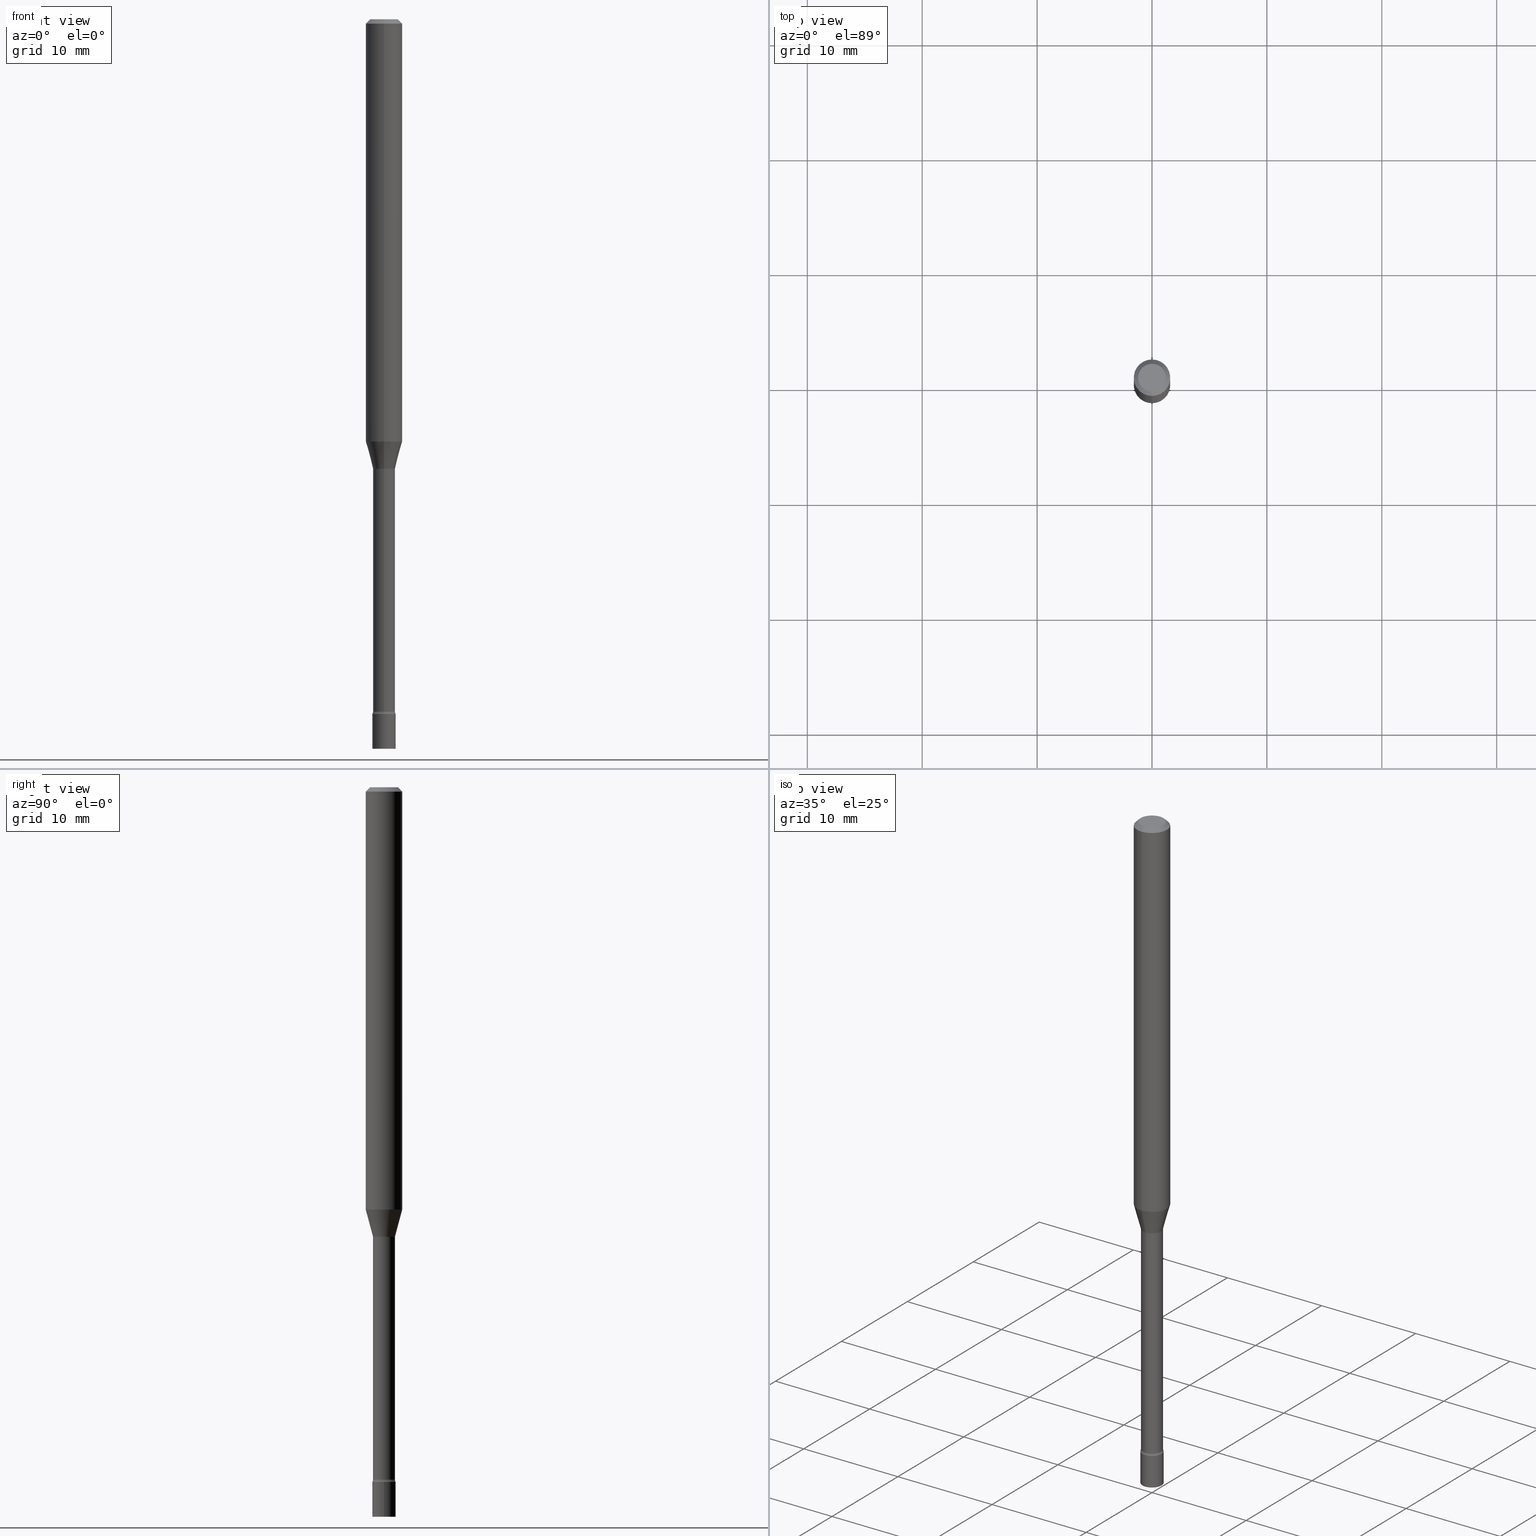
[diagram: canonical four-view strip — front | top / right | iso, engineering-drawing reading convention]
A machine part, canonical four-view strip (front | top / right | iso — engineering-drawing reading convention). The complete STEP part file that produces these views, byte-faithful:
ISO-10303-21;
HEADER;
FILE_DESCRIPTION (( 'STEP AP203' ),
    '1' );
FILE_NAME ('03607.STEP',
    '2024-03-08T22:04:50',
    ( '' ),
    ( '' ),
    'SwSTEP 2.0',
    'SolidWorks 2023',
    '' );
FILE_SCHEMA (( 'CONFIG_CONTROL_DESIGN' ));
ENDSEC;

DATA;
#1 = EDGE_LOOP ( 'NONE', ( #402, #315, #42, #100 ) ) ;
#2 = VERTEX_POINT ( 'NONE', #427 ) ;
#3 = ADVANCED_FACE ( 'NONE', ( #218 ), #393, .T. ) ;
#4 = PRODUCT_RELATED_PRODUCT_CATEGORY ( 'detail', '', ( #240 ) ) ;
#5 = PERSON_AND_ORGANIZATION_ROLE ( 'design_supplier' ) ;
#6 = LINE ( 'NONE', #289, #125 ) ;
#7 = VECTOR ( 'NONE', #462, 39.37007874015748143 ) ;
#8 = AXIS2_PLACEMENT_3D ( 'NONE', #460, #12, #94 ) ;
#9 = PLANE ( 'NONE',  #149 ) ;
#10 = ORIENTED_EDGE ( 'NONE', *, *, #24, .T. ) ;
#11 = PLANE ( 'NONE',  #245 ) ;
#12 = DIRECTION ( 'NONE',  ( -1.000000000000000000, 6.982962677686265922E-15, -4.883557194083112340E-29 ) ) ;
#13 = CARTESIAN_POINT ( 'NONE',  ( 0.04000000000000000083, -8.589044093554136769E-15, -2.379999999999999893 ) ) ;
#14 = CARTESIAN_POINT ( 'NONE',  ( 3.737454790098503724E-16, 0.05259999999999460940, -1.541974787463811225 ) ) ;
#15 = FACE_OUTER_BOUND ( 'NONE', #128, .T. ) ;
#16 = DIRECTION ( 'NONE',  ( 2.445466950502562132E-29, -3.491483996286211040E-15, -1.000000000000000000 ) ) ;
#17 = AXIS2_PLACEMENT_3D ( 'NONE', #342, #250, #50 ) ;
#18 = CARTESIAN_POINT ( 'NONE',  ( 3.668200425753850712E-31, -5.237225994429327531E-17, -0.01500000000000003067 ) ) ;
#19 = CC_DESIGN_APPROVAL ( #159, ( #487 ) ) ;
#20 = CYLINDRICAL_SURFACE ( 'NONE', #476, 0.06250000000000000000 ) ;
#21 = EDGE_CURVE ( 'NONE', #196, #481, #445, .T. ) ;
#22 = CARTESIAN_POINT ( 'NONE',  ( 3.538766591777044932E-29, -5.052428502148717688E-15, -1.447071934891535294 ) ) ;
#23 = CARTESIAN_POINT ( 'NONE',  ( -2.625593966810039482E-16, -0.03760000000000005005, 1.312797982603617000E-16 ) ) ;
#24 = EDGE_CURVE ( 'NONE', #424, #54, #463, .T. ) ;
#25 = LINE ( 'NONE', #346, #274 ) ;
#26 = ORIENTED_EDGE ( 'NONE', *, *, #431, .F. ) ;
#27 = VECTOR ( 'NONE', #331, 39.37007874015748143 ) ;
#28 = LOCAL_TIME ( 17, 4, 50.00000000000000000, #187 ) ;
#29 = VERTEX_POINT ( 'NONE', #74 ) ;
#30 = DIRECTION ( 'NONE',  ( -4.851104656540964275E-15, -0.7071067811865500152, -0.7071067811865450192 ) ) ;
#31 = ORIENTED_EDGE ( 'NONE', *, *, #267, .T. ) ;
#32 = ORIENTED_EDGE ( 'NONE', *, *, #36, .T. ) ;
#33 = CIRCLE ( 'NONE', #197, 0.04000000000000000083 ) ;
#34 = CIRCLE ( 'NONE', #198, 0.03811111260566397291 ) ;
#35 = ORIENTED_EDGE ( 'NONE', *, *, #40, .F. ) ;
#36 = EDGE_CURVE ( 'NONE', #507, #389, #356, .T. ) ;
#37 = DIRECTION ( 'NONE',  ( 1.000000000000000000, -6.982962677686259611E-15, 0.000000000000000000 ) ) ;
#38 = APPROVAL_DATE_TIME ( #151, #229 ) ;
#39 = ORIENTED_EDGE ( 'NONE', *, *, #490, .T. ) ;
#40 = EDGE_CURVE ( 'NONE', #54, #424, #33, .T. ) ;
#41 = APPROVAL_ROLE ( '' ) ;
#42 = ORIENTED_EDGE ( 'NONE', *, *, #514, .T. ) ;
#43 = CARTESIAN_POINT ( 'NONE',  ( -2.793185071073924012E-16, -0.04000000000000831363, -2.379999999999999893 ) ) ;
#44 = AXIS2_PLACEMENT_3D ( 'NONE', #160, #247, #334 ) ;
#45 = CARTESIAN_POINT ( 'NONE',  ( 3.538766591777044932E-29, -5.052428502148717688E-15, -1.447071934891535294 ) ) ;
#46 = DIRECTION ( 'NONE',  ( -6.982962677686265922E-15, -1.000000000000000000, 3.491483996286211435E-15 ) ) ;
#47 = DIRECTION ( 'NONE',  ( -6.982962677686266711E-15, -1.000000000000000000, 3.491483996286211040E-15 ) ) ;
#48 = DIRECTION ( 'NONE',  ( -2.445466950502562132E-29, 3.491483996286211040E-15, 1.000000000000000000 ) ) ;
#49 = ADVANCED_FACE ( 'NONE', ( #489 ), #453, .T. ) ;
#50 = DIRECTION ( 'NONE',  ( -6.982962677686265922E-15, -1.000000000000000000, 3.491483996286211040E-15 ) ) ;
#51 = VERTEX_POINT ( 'NONE', #43 ) ;
#52 = CARTESIAN_POINT ( 'NONE',  ( -4.364351673553912750E-16, -0.06250000000000005551, -0.01499999999999981209 ) ) ;
#53 = AXIS2_PLACEMENT_3D ( 'NONE', #499, #249, #297 ) ;
#54 = VERTEX_POINT ( 'NONE', #132 ) ;
#55 = CARTESIAN_POINT ( 'NONE',  ( -4.364351673553916201E-16, -0.06250000000000000000, 2.182177497678881900E-16 ) ) ;
#56 = ADVANCED_FACE ( 'NONE', ( #97 ), #222, .F. ) ;
#57 = ORIENTED_EDGE ( 'NONE', *, *, #516, .F. ) ;
#58 = ORIENTED_EDGE ( 'NONE', *, *, #143, .T. ) ;
#59 = PERSON_AND_ORGANIZATION_ROLE ( 'creator' ) ;
#60 = EDGE_LOOP ( 'NONE', ( #10, #440 ) ) ;
#61 = EDGE_CURVE ( 'NONE', #112, #507, #385, .T. ) ;
#62 = DIRECTION ( 'NONE',  ( -6.982962677686266711E-15, -1.000000000000000000, 0.000000000000000000 ) ) ;
#63 = DIRECTION ( 'NONE',  ( 1.000000000000000000, -6.982962677686265922E-15, 4.876176775795935793E-29 ) ) ;
#64 = ORIENTED_EDGE ( 'NONE', *, *, #433, .T. ) ;
#65 = DIRECTION ( 'NONE',  ( -2.445468806185136597E-29, 3.491481338843145583E-15, 1.000000000000000000 ) ) ;
#66 = CIRCLE ( 'NONE', #181, 0.03760000000000009862 ) ;
#67 = LOCAL_TIME ( 17, 4, 50.00000000000000000, #383 ) ;
#68 = LENGTH_MEASURE_WITH_UNIT ( LENGTH_MEASURE( 0.02539999999999999897 ), #311 );
#69 = EDGE_LOOP ( 'NONE', ( #124, #58, #239, #304 ) ) ;
#70 = CARTESIAN_POINT ( 'NONE',  ( -2.661284769304125242E-16, -0.03811111260566934361, -1.538092501787273081 ) ) ;
#71 = PERSON_AND_ORGANIZATION_ROLE ( 'design_owner' ) ;
#72 = ORIENTED_EDGE ( 'NONE', *, *, #278, .T. ) ;
#73 = AXIS2_PLACEMENT_3D ( 'NONE', #225, #442, #75 ) ;
#74 = CARTESIAN_POINT ( 'NONE',  ( -2.625593966809462627E-16, -0.03760000000000837672, -2.371861204020250025 ) ) ;
#75 = DIRECTION ( 'NONE',  ( -6.982962677686265922E-15, -1.000000000000000000, 3.483106191921935554E-15 ) ) ;
#76 = VERTEX_POINT ( 'NONE', #478 ) ;
#77 = EDGE_CURVE ( 'NONE', #78, #2, #6, .T. ) ;
#78 = VERTEX_POINT ( 'NONE', #228 ) ;
#79 = CIRCLE ( 'NONE', #436, 0.01500000000000000291 ) ;
#80 = AXIS2_PLACEMENT_3D ( 'NONE', #106, #437, #276 ) ;
#81 = AXIS2_PLACEMENT_3D ( 'NONE', #136, #107, #63 ) ;
#82 = DIRECTION ( 'NONE',  ( -2.445468806185136597E-29, 3.491481338843145583E-15, 1.000000000000000000 ) ) ;
#83 = DATE_AND_TIME ( #191, #28 ) ;
#84 = CC_DESIGN_DATE_AND_TIME_ASSIGNMENT ( #283, #366, ( #359 ) ) ;
#85 = VECTOR ( 'NONE', #285, 39.37007874015748143 ) ;
#86 = FACE_OUTER_BOUND ( 'NONE', #213, .T. ) ;
#87 = LOCAL_TIME ( 17, 4, 50.00000000000000000, #450 ) ;
#88 = CARTESIAN_POINT ( 'NONE',  ( -0.04000000000000000083, -8.234997372473236299E-15, -2.500000000000000000 ) ) ;
#89 = FACE_OUTER_BOUND ( 'NONE', #420, .T. ) ;
#90 = DIRECTION ( 'NONE',  ( 1.000000000000000000, -7.105427357601001070E-15, 4.926315541086373721E-29 ) ) ;
#91 = EDGE_CURVE ( 'NONE', #196, #76, #183, .T. ) ;
#92 = CARTESIAN_POINT ( 'NONE',  ( 2.793185071075088075E-16, 0.03999999999999169498, -2.380000000000000338 ) ) ;
#93 = DIRECTION ( 'NONE',  ( 7.105427357601001859E-15, 1.000000000000000000, 0.000000000000000000 ) ) ;
#94 = DIRECTION ( 'NONE',  ( -6.982962677686266711E-15, -1.000000000000000000, 0.000000000000000000 ) ) ;
#95 = AXIS2_PLACEMENT_3D ( 'NONE', #375, #121, #459 ) ;
#96 = CC_DESIGN_PERSON_AND_ORGANIZATION_ASSIGNMENT ( #483, #5, ( #505 ) ) ;
#97 = FACE_OUTER_BOUND ( 'NONE', #391, .T. ) ;
#98 = ORIENTED_EDGE ( 'NONE', *, *, #318, .F. ) ;
#99 = DIRECTION ( 'NONE',  ( -6.982962677686265922E-15, -1.000000000000000000, 4.370956789862821150E-15 ) ) ;
#100 = ORIENTED_EDGE ( 'NONE', *, *, #21, .F. ) ;
#101 = DIRECTION ( 'NONE',  ( -2.445466950502562132E-29, 3.491483996286211040E-15, 1.000000000000000000 ) ) ;
#102 = DIRECTION ( 'NONE',  ( 6.982962677686265922E-15, 1.000000000000000000, -3.483106191921935554E-15 ) ) ;
#103 = AXIS2_PLACEMENT_3D ( 'NONE', #45, #494, #246 ) ;
#104 = DIRECTION ( 'NONE',  ( 1.000000000000000000, 0.000000000000000000, 0.000000000000000000 ) ) ;
#105 = CARTESIAN_POINT ( 'NONE',  ( -4.287811248607203282E-16, -0.06250000000000005551, -0.01499999999999981209 ) ) ;
#106 = CARTESIAN_POINT ( 'NONE',  ( 5.820215758720625190E-29, -8.309725586446686731E-15, -2.379999999999999893 ) ) ;
#107 = DIRECTION ( 'NONE',  ( -2.438088387897960049E-29, 3.491481338843145188E-15, 1.000000000000000000 ) ) ;
#108 = CARTESIAN_POINT ( 'NONE',  ( 0.04000000000000000083, -9.008021854215314980E-15, -2.500000000000000000 ) ) ;
#109 = ORIENTED_EDGE ( 'NONE', *, *, #36, .F. ) ;
#110 = DATE_AND_TIME ( #406, #237 ) ;
#111 = CYLINDRICAL_SURFACE ( 'NONE', #287, 0.04000000000000000083 ) ;
#112 = VERTEX_POINT ( 'NONE', #146 ) ;
#113 = EDGE_LOOP ( 'NONE', ( #147, #470, #443, #209 ) ) ;
#114 = SECURITY_CLASSIFICATION_LEVEL ( 'unclassified' ) ;
#115 = ORIENTED_EDGE ( 'NONE', *, *, #374, .F. ) ;
#116 = CIRCLE ( 'NONE', #364, 0.01500000000000002720 ) ;
#117 = DIRECTION ( 'NONE',  ( 2.438088387897960049E-29, -3.491481338843145188E-15, -1.000000000000000000 ) ) ;
#118 = DIRECTION ( 'NONE',  ( -6.982962677686265922E-15, -1.000000000000000000, 0.000000000000000000 ) ) ;
#119 = DIRECTION ( 'NONE',  ( -2.445468806185136597E-29, 3.491481338843145583E-15, 1.000000000000000000 ) ) ;
#120 = ADVANCED_FACE ( 'NONE', ( #217 ), #139, .T. ) ;
#121 = DIRECTION ( 'NONE',  ( -2.445466950502562132E-29, 3.491483996286211040E-15, 1.000000000000000000 ) ) ;
#122 = FACE_OUTER_BOUND ( 'NONE', #461, .T. ) ;
#123 = ORIENTED_EDGE ( 'NONE', *, *, #133, .T. ) ;
#124 = ORIENTED_EDGE ( 'NONE', *, *, #337, .T. ) ;
#125 = VECTOR ( 'NONE', #241, 39.37007874015748143 ) ;
#126 = DIRECTION ( 'NONE',  ( -2.445468806185136597E-29, 3.491481338843145583E-15, 1.000000000000000000 ) ) ;
#127 = AXIS2_PLACEMENT_3D ( 'NONE', #161, #119, #290 ) ;
#128 = EDGE_LOOP ( 'NONE', ( #347, #269, #350, #109 ) ) ;
#129 = DIRECTION ( 'NONE',  ( -6.982962677686266711E-15, -1.000000000000000000, 3.491483996286211040E-15 ) ) ;
#130 = ORIENTED_EDGE ( 'NONE', *, *, #21, .T. ) ;
#131 = CARTESIAN_POINT ( 'NONE',  ( 3.737454790098713265E-16, 0.05259999999999181997, -2.371861204020250025 ) ) ;
#132 = CARTESIAN_POINT ( 'NONE',  ( -0.04000000000000000083, -8.234997372473236299E-15, -2.379999999999999893 ) ) ;
#133 = EDGE_CURVE ( 'NONE', #78, #296, #79, .T. ) ;
#134 = DIRECTION ( 'NONE',  ( 7.105427357601001859E-15, 1.000000000000000000, 0.000000000000000000 ) ) ;
#135 = EDGE_LOOP ( 'NONE', ( #277, #299, #444, #261 ) ) ;
#136 = CARTESIAN_POINT ( 'NONE',  ( 5.820215758720625190E-29, -8.309725586446686731E-15, -2.379999999999999893 ) ) ;
#137 = ORIENTED_EDGE ( 'NONE', *, *, #156, .T. ) ;
#138 = AXIS2_PLACEMENT_3D ( 'NONE', #303, #468, #129 ) ;
#139 = CYLINDRICAL_SURFACE ( 'NONE', #281, 0.06250000000000000000 ) ;
#140 = AXIS2_PLACEMENT_3D ( 'NONE', #493, #16, #200 ) ;
#141 = DIRECTION ( 'NONE',  ( -6.982962677686267499E-15, -1.000000000000000000, 0.000000000000000000 ) ) ;
#142 = FACE_OUTER_BOUND ( 'NONE', #60, .T. ) ;
#143 = EDGE_CURVE ( 'NONE', #270, #112, #185, .T. ) ;
#144 = CARTESIAN_POINT ( 'NONE',  ( 3.761354379936579298E-29, -5.370225354798085278E-15, -1.538092501787273081 ) ) ;
#145 = APPROVAL_STATUS ( 'not_yet_approved' ) ;
#146 = CARTESIAN_POINT ( 'NONE',  ( 4.440892098500976219E-16, 0.06249999999999491379, -1.447071934891535516 ) ) ;
#147 = ORIENTED_EDGE ( 'NONE', *, *, #77, .F. ) ;
#148 = ADVANCED_FACE ( 'NONE', ( #484 ), #273, .F. ) ;
#149 = AXIS2_PLACEMENT_3D ( 'NONE', #92, #498, #46 ) ;
#150 = CONICAL_SURFACE ( 'NONE', #314, 0.06250000000000000000, 0.7853981633974483900 ) ;
#151 = DATE_AND_TIME ( #488, #87 ) ;
#152 = EDGE_LOOP ( 'NONE', ( #518, #194, #339, #32 ) ) ;
#153 = PERSON_AND_ORGANIZATION ( #284, #302 ) ;
#154 = ADVANCED_FACE ( 'NONE', ( #425 ), #111, .T. ) ;
#155 = PERSON_AND_ORGANIZATION_ROLE ( 'classification_officer' ) ;
#156 = EDGE_CURVE ( 'NONE', #296, #51, #172, .T. ) ;
#157 = CIRCLE ( 'NONE', #519, 0.03760000000000009862 ) ;
#158 = DIRECTION ( 'NONE',  ( 6.982962677686265922E-15, 1.000000000000000000, -3.491483996286211435E-15 ) ) ;
#159 = APPROVAL ( #145, 'UNSPECIFIED' ) ;
#160 = CARTESIAN_POINT ( 'NONE',  ( 3.761354379936579298E-29, -5.370225354798085278E-15, -1.538092501787273081 ) ) ;
#161 = CARTESIAN_POINT ( 'NONE',  ( 6.113672015462842613E-29, -8.728703347107864943E-15, -2.500000000000000000 ) ) ;
#162 = AXIS2_PLACEMENT_3D ( 'NONE', #271, #512, #141 ) ;
#163 = AXIS2_PLACEMENT_3D ( 'NONE', #335, #48, #291 ) ;
#164 = CYLINDRICAL_SURFACE ( 'NONE', #53, 0.03760000000000005005 ) ;
#165 = DIRECTION ( 'NONE',  ( -2.445468806185136877E-29, 3.491481338843145188E-15, 1.000000000000000000 ) ) ;
#166 = LINE ( 'NONE', #55, #27 ) ;
#167 = ORIENTED_EDGE ( 'NONE', *, *, #156, .F. ) ;
#168 = LINE ( 'NONE', #23, #85 ) ;
#169 = EDGE_CURVE ( 'NONE', #399, #389, #441, .T. ) ;
#170 = DIRECTION ( 'NONE',  ( -2.445466950502562132E-29, 3.491483996286211040E-15, 1.000000000000000000 ) ) ;
#171 = CC_DESIGN_PERSON_AND_ORGANIZATION_ASSIGNMENT ( #421, #59, ( #359 ) ) ;
#172 = CIRCLE ( 'NONE', #244, 0.04000000000000000083 ) ;
#173 = AXIS2_PLACEMENT_3D ( 'NONE', #22, #170, #99 ) ;
#174 = EDGE_LOOP ( 'NONE', ( #57, #64, #412, #35 ) ) ;
#175 = CARTESIAN_POINT ( 'NONE',  ( 3.761354379936579298E-29, -5.370225354798085278E-15, -1.538092501787273081 ) ) ;
#176 = ADVANCED_FACE ( 'NONE', ( #432 ), #9, .F. ) ;
#177 = DIRECTION ( 'NONE',  ( 1.000000000000000000, -7.105427357601001070E-15, 4.926315541086373721E-29 ) ) ;
#178 = DIRECTION ( 'NONE',  ( -6.982962677686265922E-15, -1.000000000000000000, 3.491483996286210646E-15 ) ) ;
#179 = APPROVAL_STATUS ( 'not_yet_approved' ) ;
#180 = ORIENTED_EDGE ( 'NONE', *, *, #234, .F. ) ;
#181 = AXIS2_PLACEMENT_3D ( 'NONE', #414, #457, #377 ) ;
#182 = DIRECTION ( 'NONE',  ( 1.839019923739601104E-15, 0.2588190451025250693, 0.9659258262890670910 ) ) ;
#183 = LINE ( 'NONE', #70, #378 ) ;
#184 = CARTESIAN_POINT ( 'NONE',  ( -2.625593966809658857E-16, -0.03760000000000537912, -1.541974787463811003 ) ) ;
#185 = LINE ( 'NONE', #317, #504 ) ;
#186 = CARTESIAN_POINT ( 'NONE',  ( 0.000000000000000000, 0.000000000000000000, 0.000000000000000000 ) ) ;
#187 = COORDINATED_UNIVERSAL_TIME_OFFSET ( 5, 0, .BEHIND. ) ;
#188 = ORIENTED_EDGE ( 'NONE', *, *, #354, .F. ) ;
#189 = ORIENTED_EDGE ( 'NONE', *, *, #169, .T. ) ;
#190 = CONICAL_SURFACE ( 'NONE', #44, 0.03811111260566397291, 0.2617993877991502960 ) ;
#191 = CALENDAR_DATE ( 2024, 8, 3 ) ;
#192 = ORIENTED_EDGE ( 'NONE', *, *, #337, .F. ) ;
#193 = ADVANCED_FACE ( 'NONE', ( #376 ), #265, .T. ) ;
#194 = ORIENTED_EDGE ( 'NONE', *, *, #267, .F. ) ;
#195 = EDGE_CURVE ( 'NONE', #310, #424, #500, .T. ) ;
#196 = VERTEX_POINT ( 'NONE', #340 ) ;
#197 = AXIS2_PLACEMENT_3D ( 'NONE', #230, #400, #37 ) ;
#198 = AXIS2_PLACEMENT_3D ( 'NONE', #175, #101, #471 ) ;
#199 = CARTESIAN_POINT ( 'NONE',  ( 0.000000000000000000, 0.000000000000000000, 0.000000000000000000 ) ) ;
#200 = DIRECTION ( 'NONE',  ( 6.982962677686265922E-15, 1.000000000000000000, -3.483106191921935554E-15 ) ) ;
#201 = CARTESIAN_POINT ( 'NONE',  ( 3.574424759935164647E-16, 0.03811111260565860220, -1.538092501787273081 ) ) ;
#202 = CONICAL_SURFACE ( 'NONE', #288, 0.03811111260566397291, 0.2617993877991502960 ) ;
#203 = CARTESIAN_POINT ( 'NONE',  ( 3.316907271900976096E-16, 0.04749999999999999362, -1.803023821732567280E-16 ) ) ;
#204 = DIRECTION ( 'NONE',  ( -2.445466950502562132E-29, 3.491483996286211040E-15, 1.000000000000000000 ) ) ;
#205 = DIRECTION ( 'NONE',  ( -2.445466950502562132E-29, 3.491483996286211040E-15, 1.000000000000000000 ) ) ;
#206 = DIRECTION ( 'NONE',  ( 2.445466950502561571E-29, -3.491483996286211435E-15, -1.000000000000000000 ) ) ;
#207 = VERTEX_POINT ( 'NONE', #88 ) ;
#208 = DIRECTION ( 'NONE',  ( -6.982962677686265922E-15, -1.000000000000000000, 3.483106191921935554E-15 ) ) ;
#209 = ORIENTED_EDGE ( 'NONE', *, *, #514, .F. ) ;
#210 = EDGE_LOOP ( 'NONE', ( #98, #355 ) ) ;
#211 = ORIENTED_EDGE ( 'NONE', *, *, #24, .F. ) ;
#212 = CARTESIAN_POINT ( 'NONE',  ( 3.770848381250961957E-29, -5.383780293106726764E-15, -1.541974787463811003 ) ) ;
#213 = EDGE_LOOP ( 'NONE', ( #31, #39 ) ) ;
#214 = APPROVAL_PERSON_ORGANIZATION ( #520, #229, #231 ) ;
#215 = CARTESIAN_POINT ( 'NONE',  ( 0.000000000000000000, 0.000000000000000000, 0.000000000000000000 ) ) ;
#216 = EDGE_CURVE ( 'NONE', #112, #76, #357, .T. ) ;
#217 = FACE_OUTER_BOUND ( 'NONE', #135, .T. ) ;
#218 = FACE_OUTER_BOUND ( 'NONE', #113, .T. ) ;
#219 = APPLICATION_PROTOCOL_DEFINITION ( 'international standard', 'config_control_design', 1994, #384 ) ;
#220 = DIRECTION ( 'NONE',  ( -1.807323732225330928E-15, -0.2588190451025182970, 0.9659258262890689783 ) ) ;
#221 = APPLICATION_PROTOCOL_DEFINITION ( 'international standard', 'config_control_design', 1994, #452 ) ;
#222 = TOROIDAL_SURFACE ( 'NONE', #235, 0.05260000000000000092, 0.01500000000000002720 ) ;
#223 = AXIS2_PLACEMENT_3D ( 'NONE', #361, #82, #407 ) ;
#224 = CC_DESIGN_SECURITY_CLASSIFICATION ( #487, ( #505 ) ) ;
#225 = CARTESIAN_POINT ( 'NONE',  ( 3.668200425753850712E-31, -5.237225994429327531E-17, -0.01500000000000003067 ) ) ;
#226 = COORDINATED_UNIVERSAL_TIME_OFFSET ( 5, 0, .BEHIND. ) ;
#227 = MANIFOLD_SOLID_BREP ( 'Body-Move/Copy2[2]', #395 ) ;
#228 = CARTESIAN_POINT ( 'NONE',  ( 2.756905814749772560E-16, 0.03759999999999182052, -2.371861204020250025 ) ) ;
#229 = APPROVAL ( #279, 'UNSPECIFIED' ) ;
#230 = CARTESIAN_POINT ( 'NONE',  ( 5.820215758720625190E-29, -8.309725586446686731E-15, -2.379999999999999893 ) ) ;
#231 = APPROVAL_ROLE ( '' ) ;
#232 = ORIENTED_EDGE ( 'NONE', *, *, #318, .T. ) ;
#233 = ORIENTED_EDGE ( 'NONE', *, *, #77, .T. ) ;
#234 = EDGE_CURVE ( 'NONE', #29, #78, #157, .T. ) ;
#235 = AXIS2_PLACEMENT_3D ( 'NONE', #458, #349, #307 ) ;
#236 = CIRCLE ( 'NONE', #103, 0.06250000000000000000 ) ;
#237 = LOCAL_TIME ( 17, 4, 50.00000000000000000, #226 ) ;
#238 = ADVANCED_FACE ( 'NONE', ( #338 ), #202, .T. ) ;
#239 = ORIENTED_EDGE ( 'NONE', *, *, #401, .F. ) ;
#240 = PRODUCT ( '03607', '03607', '', ( #480 ) ) ;
#241 = DIRECTION ( 'NONE',  ( -2.445466950502561851E-29, 3.491483996286211435E-15, 1.000000000000000000 ) ) ;
#242 = DATE_TIME_ROLE ( 'classification_date' ) ;
#243 = ADVANCED_FACE ( 'NONE', ( #122 ), #372, .T. ) ;
#244 = AXIS2_PLACEMENT_3D ( 'NONE', #509, #479, #275 ) ;
#245 = AXIS2_PLACEMENT_3D ( 'NONE', #203, #206, #158 ) ;
#246 = DIRECTION ( 'NONE',  ( -6.982962677686265922E-15, -1.000000000000000000, 4.370956789862821150E-15 ) ) ;
#247 = DIRECTION ( 'NONE',  ( -2.445466950502562132E-29, 3.491483996286211040E-15, 1.000000000000000000 ) ) ;
#248 = CC_DESIGN_PERSON_AND_ORGANIZATION_ASSIGNMENT ( #368, #327, ( #505 ) ) ;
#249 = DIRECTION ( 'NONE',  ( -2.445466950502562132E-29, 3.491483996286211040E-15, 1.000000000000000000 ) ) ;
#250 = DIRECTION ( 'NONE',  ( -2.445466950502562132E-29, 3.491483996286211040E-15, 1.000000000000000000 ) ) ;
#251 = EDGE_CURVE ( 'NONE', #29, #51, #330, .T. ) ;
#252 = CARTESIAN_POINT ( 'NONE',  ( 5.800308185610736390E-29, -8.281315435248845648E-15, -2.371861204020250025 ) ) ;
#253 = CIRCLE ( 'NONE', #127, 0.04000000000000000083 ) ;
#254 = CARTESIAN_POINT ( 'NONE',  ( 4.364351673553919652E-16, 0.06249999999999995143, -0.01500000000000024751 ) ) ;
#255 = CARTESIAN_POINT ( 'NONE',  ( 7.070770489614202701E-46, -1.009520165497527576E-31, -2.891378469932339857E-17 ) ) ;
#256 = ORIENTED_EDGE ( 'NONE', *, *, #143, .F. ) ;
#257 = EDGE_LOOP ( 'NONE', ( #472, #167 ) ) ;
#258 = ADVANCED_FACE ( 'NONE', ( #286 ), #190, .T. ) ;
#259 = ORIENTED_EDGE ( 'NONE', *, *, #91, .T. ) ;
#260 = CC_DESIGN_DATE_AND_TIME_ASSIGNMENT ( #83, #242, ( #487 ) ) ;
#261 = ORIENTED_EDGE ( 'NONE', *, *, #367, .F. ) ;
#262 = CARTESIAN_POINT ( 'NONE',  ( 4.440892098500982135E-16, 0.06249999999999995143, -0.01500000000000024751 ) ) ;
#263 = DIRECTION ( 'NONE',  ( -2.445466950502562132E-29, 3.491483996286211040E-15, 1.000000000000000000 ) ) ;
#264 = DIRECTION ( 'NONE',  ( -2.445466950502562132E-29, 3.491483996286211040E-15, 1.000000000000000000 ) ) ;
#265 = CONICAL_SURFACE ( 'NONE', #140, 0.06250000000000000000, 0.7853981633974483900 ) ;
#266 = CARTESIAN_POINT ( 'NONE',  ( 3.840629472727447874E-16, 0.04749999999999999362, -1.947592745229183872E-16 ) ) ;
#267 = EDGE_CURVE ( 'NONE', #510, #399, #447, .T. ) ;
#268 = CARTESIAN_POINT ( 'NONE',  ( 3.668200425753850712E-31, -5.237225994429327531E-17, -0.01500000000000003067 ) ) ;
#269 = ORIENTED_EDGE ( 'NONE', *, *, #216, .T. ) ;
#270 = VERTEX_POINT ( 'NONE', #201 ) ;
#271 = CARTESIAN_POINT ( 'NONE',  ( -3.673038368462598469E-16, -0.05260000000000538550, -1.541974787463810781 ) ) ;
#272 = SHAPE_DEFINITION_REPRESENTATION ( #473, #506 ) ;
#273 = TOROIDAL_SURFACE ( 'NONE', #343, 0.05260000000000009807, 0.01500000000000000291 ) ;
#274 = VECTOR ( 'NONE', #319, 39.37007874015748143 ) ;
#275 = DIRECTION ( 'NONE',  ( -6.982962677686265922E-15, -1.000000000000000000, 6.829619984160658243E-15 ) ) ;
#276 = DIRECTION ( 'NONE',  ( 1.000000000000000000, -6.982962677686259611E-15, 0.000000000000000000 ) ) ;
#277 = ORIENTED_EDGE ( 'NONE', *, *, #401, .T. ) ;
#278 = EDGE_CURVE ( 'NONE', #481, #2, #336, .T. ) ;
#279 = APPROVAL_STATUS ( 'not_yet_approved' ) ;
#280 = ORIENTED_EDGE ( 'NONE', *, *, #492, .T. ) ;
#281 = AXIS2_PLACEMENT_3D ( 'NONE', #392, #322, #348 ) ;
#282 = CIRCLE ( 'NONE', #396, 0.03811111260566397291 ) ;
#283 = DATE_AND_TIME ( #320, #67 ) ;
#284 = PERSON ( 'UNSPECIFIED', 'UNSPECIFIED', 'UNSPECIFIED', ('UNSPECIFIED'), ('UNSPECIFIED'), ('UNSPECIFIED') ) ;
#285 = DIRECTION ( 'NONE',  ( -2.445466950502561851E-29, 3.491483996286211435E-15, 1.000000000000000000 ) ) ;
#286 = FACE_OUTER_BOUND ( 'NONE', #69, .T. ) ;
#287 = AXIS2_PLACEMENT_3D ( 'NONE', #215, #65, #390 ) ;
#288 = AXIS2_PLACEMENT_3D ( 'NONE', #454, #332, #417 ) ;
#289 = CARTESIAN_POINT ( 'NONE',  ( 2.671640686457979762E-16, 0.03760000000000005005, -1.312797982603617000E-16 ) ) ;
#290 = DIRECTION ( 'NONE',  ( 1.000000000000000000, -6.982962677686259611E-15, 0.000000000000000000 ) ) ;
#291 = DIRECTION ( 'NONE',  ( -6.982962677686265922E-15, -1.000000000000000000, 3.491483996286211040E-15 ) ) ;
#292 = LINE ( 'NONE', #254, #491 ) ;
#293 = DIRECTION ( 'NONE',  ( 1.000000000000000000, -6.982962677686265922E-15, 4.876176775795935793E-29 ) ) ;
#294 = FACE_OUTER_BOUND ( 'NONE', #1, .T. ) ;
#295 = EDGE_CURVE ( 'NONE', #51, #296, #465, .T. ) ;
#296 = VERTEX_POINT ( 'NONE', #313 ) ;
#297 = DIRECTION ( 'NONE',  ( -6.982962677686265922E-15, -1.000000000000000000, 3.491483996286210646E-15 ) ) ;
#298 = DIRECTION ( 'NONE',  ( -2.445466950502562132E-29, 3.491483996286211040E-15, 1.000000000000000000 ) ) ;
#299 = ORIENTED_EDGE ( 'NONE', *, *, #61, .T. ) ;
#300 = AXIS2_PLACEMENT_3D ( 'NONE', #186, #323, #178 ) ;
#301 = TOROIDAL_SURFACE ( 'NONE', #17, 0.05260000000000009807, 0.01500000000000000291 ) ;
#302 = ORGANIZATION ( 'UNSPECIFIED', 'UNSPECIFIED', '' ) ;
#303 = CARTESIAN_POINT ( 'NONE',  ( 7.070770489614202701E-46, -1.009520165497527576E-31, -2.891378469932339857E-17 ) ) ;
#304 = ORIENTED_EDGE ( 'NONE', *, *, #91, .F. ) ;
#305 = CC_DESIGN_PERSON_AND_ORGANIZATION_ASSIGNMENT ( #486, #155, ( #487 ) ) ;
#306 = FACE_OUTER_BOUND ( 'NONE', #467, .T. ) ;
#307 = DIRECTION ( 'NONE',  ( -6.982962677686265922E-15, -1.000000000000000000, 3.491483996286211040E-15 ) ) ;
#308 = DIRECTION ( 'NONE',  ( 2.445466950502562132E-29, -3.491483996286211040E-15, -1.000000000000000000 ) ) ;
#309 = CARTESIAN_POINT ( 'NONE',  ( 4.440892098500625669E-16, 0.06250000000000000000, -2.182177497678881900E-16 ) ) ;
#310 = VERTEX_POINT ( 'NONE', #108 ) ;
#311 =( LENGTH_UNIT ( ) NAMED_UNIT ( * ) SI_UNIT ( $, .METRE. ) );
#312 = CARTESIAN_POINT ( 'NONE',  ( 0.000000000000000000, 0.000000000000000000, 0.000000000000000000 ) ) ;
#313 = CARTESIAN_POINT ( 'NONE',  ( 2.842170943040982095E-16, 0.03999999999999170192, -2.380000000000000338 ) ) ;
#314 = AXIS2_PLACEMENT_3D ( 'NONE', #268, #308, #102 ) ;
#315 = ORIENTED_EDGE ( 'NONE', *, *, #341, .T. ) ;
#316 = AXIS2_PLACEMENT_3D ( 'NONE', #312, #477, #104 ) ;
#317 = CARTESIAN_POINT ( 'NONE',  ( 2.707957421369347653E-16, 0.03811111260565860220, -1.538092501787273081 ) ) ;
#318 = EDGE_CURVE ( 'NONE', #310, #207, #344, .T. ) ;
#319 = DIRECTION ( 'NONE',  ( -2.445468806185136877E-29, 3.491481338843145188E-15, 1.000000000000000000 ) ) ;
#320 = CALENDAR_DATE ( 2024, 8, 3 ) ;
#321 = APPROVAL ( #179, 'UNSPECIFIED' ) ;
#322 = DIRECTION ( 'NONE',  ( -2.445466950502562132E-29, 3.491483996286211040E-15, 1.000000000000000000 ) ) ;
#323 = DIRECTION ( 'NONE',  ( -2.445466950502562132E-29, 3.491483996286211040E-15, 1.000000000000000000 ) ) ;
#324 = ORIENTED_EDGE ( 'NONE', *, *, #341, .F. ) ;
#325 = VECTOR ( 'NONE', #30, 39.37007874015748143 ) ;
#326 = AXIS2_PLACEMENT_3D ( 'NONE', #503, #126, #293 ) ;
#327 = PERSON_AND_ORGANIZATION_ROLE ( 'creator' ) ;
#328 = ADVANCED_FACE ( 'NONE', ( #294 ), #496, .F. ) ;
#329 = APPROVAL_DATE_TIME ( #110, #159 ) ;
#330 = CIRCLE ( 'NONE', #8, 0.01500000000000000291 ) ;
#331 = DIRECTION ( 'NONE',  ( -2.445466950502561851E-29, 3.491483996286211435E-15, 1.000000000000000000 ) ) ;
#332 = DIRECTION ( 'NONE',  ( -2.445466950502562132E-29, 3.491483996286211040E-15, 1.000000000000000000 ) ) ;
#333 = CARTESIAN_POINT ( 'NONE',  ( -3.773273898774340269E-16, -0.04749999999999999362, 1.369317051242716271E-16 ) ) ;
#334 = DIRECTION ( 'NONE',  ( -6.982962677686266711E-15, -1.000000000000000000, 0.000000000000000000 ) ) ;
#335 = CARTESIAN_POINT ( 'NONE',  ( 3.770851242666705328E-29, -5.383776195396521708E-15, -1.541974787463811003 ) ) ;
#336 = CIRCLE ( 'NONE', #95, 0.03759999999999999454 ) ;
#337 = EDGE_CURVE ( 'NONE', #196, #270, #282, .T. ) ;
#338 = FACE_OUTER_BOUND ( 'NONE', #501, .T. ) ;
#339 = ORIENTED_EDGE ( 'NONE', *, *, #374, .T. ) ;
#340 = CARTESIAN_POINT ( 'NONE',  ( -2.661284769304125242E-16, -0.03811111260566934361, -1.538092501787273081 ) ) ;
#341 = EDGE_CURVE ( 'NONE', #270, #2, #116, .T. ) ;
#342 = CARTESIAN_POINT ( 'NONE',  ( 5.800312587032241644E-29, -8.281309132162736146E-15, -2.371861204020250025 ) ) ;
#343 = AXIS2_PLACEMENT_3D ( 'NONE', #508, #263, #353 ) ;
#344 = CIRCLE ( 'NONE', #223, 0.04000000000000000083 ) ;
#345 = ORIENTED_EDGE ( 'NONE', *, *, #516, .T. ) ;
#346 = CARTESIAN_POINT ( 'NONE',  ( -0.04000000000000000083, 2.842170943040400803E-16, -1.967574036101962509E-30 ) ) ;
#347 = ORIENTED_EDGE ( 'NONE', *, *, #61, .F. ) ;
#348 = DIRECTION ( 'NONE',  ( -6.982962677686265922E-15, -1.000000000000000000, 3.491483996286211040E-15 ) ) ;
#349 = DIRECTION ( 'NONE',  ( -2.445466950502562132E-29, 3.491483996286211040E-15, 1.000000000000000000 ) ) ;
#350 = ORIENTED_EDGE ( 'NONE', *, *, #367, .T. ) ;
#351 =( NAMED_UNIT ( * ) PLANE_ANGLE_UNIT ( ) SI_UNIT ( $, .RADIAN. ) );
#352 = ADVANCED_FACE ( 'NONE', ( #306 ), #301, .F. ) ;
#353 = DIRECTION ( 'NONE',  ( -6.982962677686265922E-15, -1.000000000000000000, 3.491483996286211040E-15 ) ) ;
#354 = EDGE_CURVE ( 'NONE', #78, #29, #66, .T. ) ;
#355 = ORIENTED_EDGE ( 'NONE', *, *, #433, .F. ) ;
#356 = CIRCLE ( 'NONE', #73, 0.06250000000000000000 ) ;
#357 = CIRCLE ( 'NONE', #173, 0.06250000000000000000 ) ;
#358 = CALENDAR_DATE ( 2024, 8, 3 ) ;
#359 = PRODUCT_DEFINITION ( 'UNKNOWN', '', #505, #517 ) ;
#360 = PERSON_AND_ORGANIZATION ( #284, #302 ) ;
#361 = CARTESIAN_POINT ( 'NONE',  ( 6.113672015462842613E-29, -8.728703347107864943E-15, -2.500000000000000000 ) ) ;
#362 = ORIENTED_EDGE ( 'NONE', *, *, #295, .T. ) ;
#363 = EDGE_CURVE ( 'NONE', #389, #507, #446, .T. ) ;
#364 = AXIS2_PLACEMENT_3D ( 'NONE', #14, #90, #93 ) ;
#365 = ORIENTED_EDGE ( 'NONE', *, *, #251, .T. ) ;
#366 = DATE_TIME_ROLE ( 'creation_date' ) ;
#367 = EDGE_CURVE ( 'NONE', #76, #389, #166, .T. ) ;
#368 = PERSON_AND_ORGANIZATION ( #284, #302 ) ;
#369 = AXIS2_PLACEMENT_3D ( 'NONE', #373, #117, #449 ) ;
#370 = AXIS2_PLACEMENT_3D ( 'NONE', #255, #409, #47 ) ;
#371 = DIRECTION ( 'NONE',  ( 4.937700262164548042E-15, 0.7071067811865451302, -0.7071067811865499042 ) ) ;
#372 = CYLINDRICAL_SURFACE ( 'NONE', #326, 0.04000000000000000083 ) ;
#373 = CARTESIAN_POINT ( 'NONE',  ( 2.793185071075117657E-16, 0.03999999999999127864, -2.500000000000000000 ) ) ;
#374 = EDGE_CURVE ( 'NONE', #510, #507, #292, .T. ) ;
#375 = CARTESIAN_POINT ( 'NONE',  ( 3.770848381250961957E-29, -5.383780293106726764E-15, -1.541974787463811003 ) ) ;
#376 = FACE_OUTER_BOUND ( 'NONE', #152, .T. ) ;
#377 = DIRECTION ( 'NONE',  ( -6.982962677686265922E-15, -1.000000000000000000, 0.000000000000000000 ) ) ;
#378 = VECTOR ( 'NONE', #220, 39.37007874015748143 ) ;
#379 = AXIS2_PLACEMENT_3D ( 'NONE', #212, #264, #429 ) ;
#380 = ORIENTED_EDGE ( 'NONE', *, *, #234, .T. ) ;
#381 = DIRECTION ( 'NONE',  ( -6.982962677686265922E-15, -1.000000000000000000, 3.491483996286211040E-15 ) ) ;
#382 = ORIENTED_EDGE ( 'NONE', *, *, #363, .T. ) ;
#383 = COORDINATED_UNIVERSAL_TIME_OFFSET ( 5, 0, .BEHIND. ) ;
#384 = APPLICATION_CONTEXT ( 'configuration controlled 3d designs of mechanical parts and assemblies' ) ;
#385 = LINE ( 'NONE', #309, #7 ) ;
#386 = ORIENTED_EDGE ( 'NONE', *, *, #133, .F. ) ;
#387 =( CONVERSION_BASED_UNIT ( 'INCH', #68 ) LENGTH_UNIT ( ) NAMED_UNIT ( #410 ) );
#388 = DIRECTION ( 'NONE',  ( -6.982962677686265922E-15, -1.000000000000000000, 6.829619984160658243E-15 ) ) ;
#389 = VERTEX_POINT ( 'NONE', #52 ) ;
#390 = DIRECTION ( 'NONE',  ( 1.000000000000000000, -6.982962677686265922E-15, 4.876176775795935793E-29 ) ) ;
#391 = EDGE_LOOP ( 'NONE', ( #324, #192, #130, #72 ) ) ;
#392 = CARTESIAN_POINT ( 'NONE',  ( 0.000000000000000000, 0.000000000000000000, 0.000000000000000000 ) ) ;
#393 = CYLINDRICAL_SURFACE ( 'NONE', #300, 0.03760000000000005005 ) ;
#394 = PERSON_AND_ORGANIZATION ( #284, #302 ) ;
#395 = CLOSED_SHELL ( 'NONE', ( #328, #448, #148, #466, #120, #258, #238, #419, #193, #428, #176, #352, #3, #56 ) ) ;
#396 = AXIS2_PLACEMENT_3D ( 'NONE', #144, #205, #62 ) ;
#397 = COORDINATED_UNIVERSAL_TIME_OFFSET ( 5, 0, .BEHIND. ) ;
#398 = CC_DESIGN_APPROVAL ( #229, ( #505 ) ) ;
#399 = VERTEX_POINT ( 'NONE', #333 ) ;
#400 = DIRECTION ( 'NONE',  ( -2.445468806185136597E-29, 3.491481338843145583E-15, 1.000000000000000000 ) ) ;
#401 = EDGE_CURVE ( 'NONE', #76, #112, #236, .T. ) ;
#402 = ORIENTED_EDGE ( 'NONE', *, *, #492, .F. ) ;
#403 = AXIS2_PLACEMENT_3D ( 'NONE', #18, #464, #208 ) ;
#404 = ORIENTED_EDGE ( 'NONE', *, *, #278, .F. ) ;
#405 = EDGE_LOOP ( 'NONE', ( #188, #123, #137, #422 ) ) ;
#406 = CALENDAR_DATE ( 2024, 8, 3 ) ;
#407 = DIRECTION ( 'NONE',  ( 1.000000000000000000, -6.982962677686259611E-15, 0.000000000000000000 ) ) ;
#408 = DIRECTION ( 'NONE',  ( -2.445466950502562132E-29, 3.491483996286211040E-15, 1.000000000000000000 ) ) ;
#409 = DIRECTION ( 'NONE',  ( -2.445466950502562132E-29, 3.491483996286211040E-15, 1.000000000000000000 ) ) ;
#410 = DIMENSIONAL_EXPONENTS ( 1.000000000000000000, 0.000000000000000000, 0.000000000000000000, 0.000000000000000000, 0.000000000000000000, 0.000000000000000000, 0.000000000000000000 ) ;
#411 = FACE_OUTER_BOUND ( 'NONE', #474, .T. ) ;
#412 = ORIENTED_EDGE ( 'NONE', *, *, #195, .T. ) ;
#413 = CARTESIAN_POINT ( 'NONE',  ( 5.820211342196098849E-29, -8.309731911161183420E-15, -2.379999999999999893 ) ) ;
#414 = CARTESIAN_POINT ( 'NONE',  ( 5.800308185610736390E-29, -8.281315435248845648E-15, -2.371861204020250025 ) ) ;
#415 = VECTOR ( 'NONE', #165, 39.37007874015748143 ) ;
#416 = MANIFOLD_SOLID_BREP ( 'Body-Move/Copy2[1]', #495 ) ;
#417 = DIRECTION ( 'NONE',  ( -6.982962677686266711E-15, -1.000000000000000000, 0.000000000000000000 ) ) ;
#418 = ORIENTED_EDGE ( 'NONE', *, *, #195, .F. ) ;
#419 = ADVANCED_FACE ( 'NONE', ( #15 ), #20, .T. ) ;
#420 = EDGE_LOOP ( 'NONE', ( #380, #233, #404, #26 ) ) ;
#421 = PERSON_AND_ORGANIZATION ( #284, #302 ) ;
#422 = ORIENTED_EDGE ( 'NONE', *, *, #251, .F. ) ;
#423 = PLANE ( 'NONE',  #81 ) ;
#424 = VERTEX_POINT ( 'NONE', #13 ) ;
#425 = FACE_OUTER_BOUND ( 'NONE', #174, .T. ) ;
#426 =( GEOMETRIC_REPRESENTATION_CONTEXT ( 3 ) GLOBAL_UNCERTAINTY_ASSIGNED_CONTEXT ( ( #435 ) ) GLOBAL_UNIT_ASSIGNED_CONTEXT ( ( #387, #351, #475 ) ) REPRESENTATION_CONTEXT ( 'NONE', 'WORKASPACE' ) );
#427 = CARTESIAN_POINT ( 'NONE',  ( 2.671640686458559082E-16, 0.03759999999999461689, -1.541974787463811003 ) ) ;
#428 = ADVANCED_FACE ( 'NONE', ( #86 ), #11, .F. ) ;
#429 = DIRECTION ( 'NONE',  ( -6.982962677686265922E-15, -1.000000000000000000, 0.000000000000000000 ) ) ;
#430 = ORIENTED_EDGE ( 'NONE', *, *, #216, .F. ) ;
#431 = EDGE_CURVE ( 'NONE', #29, #481, #168, .T. ) ;
#432 = FACE_OUTER_BOUND ( 'NONE', #257, .T. ) ;
#433 = EDGE_CURVE ( 'NONE', #207, #310, #253, .T. ) ;
#434 = APPROVAL_ROLE ( '' ) ;
#435 = UNCERTAINTY_MEASURE_WITH_UNIT (LENGTH_MEASURE( 1.000000000000000082E-05 ), #387, 'distance_accuracy_value', 'NONE');
#436 = AXIS2_PLACEMENT_3D ( 'NONE', #131, #177, #134 ) ;
#437 = DIRECTION ( 'NONE',  ( -2.445468806185136597E-29, 3.491481338843145583E-15, 1.000000000000000000 ) ) ;
#438 = CIRCLE ( 'NONE', #138, 0.04749999999999999362 ) ;
#439 = LOCAL_TIME ( 17, 4, 50.00000000000000000, #397 ) ;
#440 = ORIENTED_EDGE ( 'NONE', *, *, #40, .T. ) ;
#441 = LINE ( 'NONE', #105, #325 ) ;
#442 = DIRECTION ( 'NONE',  ( -2.445466950502562132E-29, 3.491483996286211040E-15, 1.000000000000000000 ) ) ;
#443 = ORIENTED_EDGE ( 'NONE', *, *, #431, .T. ) ;
#444 = ORIENTED_EDGE ( 'NONE', *, *, #363, .F. ) ;
#445 = CIRCLE ( 'NONE', #162, 0.01500000000000002720 ) ;
#446 = CIRCLE ( 'NONE', #403, 0.06250000000000000000 ) ;
#447 = CIRCLE ( 'NONE', #370, 0.04749999999999999362 ) ;
#448 = ADVANCED_FACE ( 'NONE', ( #89 ), #164, .T. ) ;
#449 = DIRECTION ( 'NONE',  ( -1.000000000000000000, 6.982962677686265922E-15, -4.876176775795935793E-29 ) ) ;
#450 = COORDINATED_UNIVERSAL_TIME_OFFSET ( 5, 0, .BEHIND. ) ;
#451 = CC_DESIGN_PERSON_AND_ORGANIZATION_ASSIGNMENT ( #360, #71, ( #240 ) ) ;
#452 = APPLICATION_CONTEXT ( 'configuration controlled 3d designs of mechanical parts and assemblies' ) ;
#453 = PLANE ( 'NONE',  #369 ) ;
#454 = CARTESIAN_POINT ( 'NONE',  ( 3.761354379936579298E-29, -5.370225354798085278E-15, -1.538092501787273081 ) ) ;
#455 = CIRCLE ( 'NONE', #379, 0.03759999999999999454 ) ;
#456 = CC_DESIGN_APPROVAL ( #321, ( #359 ) ) ;
#457 = DIRECTION ( 'NONE',  ( -2.445466950502562132E-29, 3.491483996286211040E-15, 1.000000000000000000 ) ) ;
#458 = CARTESIAN_POINT ( 'NONE',  ( 3.770851242666705328E-29, -5.383776195396521708E-15, -1.541974787463811003 ) ) ;
#459 = DIRECTION ( 'NONE',  ( -6.982962677686265922E-15, -1.000000000000000000, 0.000000000000000000 ) ) ;
#460 = CARTESIAN_POINT ( 'NONE',  ( -3.673038368462402733E-16, -0.05260000000000838311, -2.371861204020249581 ) ) ;
#461 = EDGE_LOOP ( 'NONE', ( #232, #345, #211, #418 ) ) ;
#462 = DIRECTION ( 'NONE',  ( -2.445466950502561851E-29, 3.491483996286211435E-15, 1.000000000000000000 ) ) ;
#463 = CIRCLE ( 'NONE', #80, 0.04000000000000000083 ) ;
#464 = DIRECTION ( 'NONE',  ( -2.445466950502562132E-29, 3.491483996286211040E-15, 1.000000000000000000 ) ) ;
#465 = CIRCLE ( 'NONE', #485, 0.04000000000000000083 ) ;
#466 = ADVANCED_FACE ( 'NONE', ( #411 ), #150, .T. ) ;
#467 = EDGE_LOOP ( 'NONE', ( #386, #180, #365, #362 ) ) ;
#468 = DIRECTION ( 'NONE',  ( -2.445466950502562132E-29, 3.491483996286211040E-15, 1.000000000000000000 ) ) ;
#469 = CARTESIAN_POINT ( 'NONE',  ( 0.04000000000000000083, -2.793185071074506290E-16, 1.950470710318374387E-30 ) ) ;
#470 = ORIENTED_EDGE ( 'NONE', *, *, #354, .T. ) ;
#471 = DIRECTION ( 'NONE',  ( -6.982962677686266711E-15, -1.000000000000000000, 0.000000000000000000 ) ) ;
#472 = ORIENTED_EDGE ( 'NONE', *, *, #295, .F. ) ;
#473 = PRODUCT_DEFINITION_SHAPE ( 'NONE', 'NONE',  #359 ) ;
#474 = EDGE_LOOP ( 'NONE', ( #502, #189, #382, #115 ) ) ;
#475 =( NAMED_UNIT ( * ) SI_UNIT ( $, .STERADIAN. ) SOLID_ANGLE_UNIT ( ) );
#476 = AXIS2_PLACEMENT_3D ( 'NONE', #199, #408, #381 ) ;
#477 = DIRECTION ( 'NONE',  ( 0.000000000000000000, 0.000000000000000000, 1.000000000000000000 ) ) ;
#478 = CARTESIAN_POINT ( 'NONE',  ( -4.364351673553565651E-16, -0.06250000000000509315, -1.447071934891535072 ) ) ;
#479 = DIRECTION ( 'NONE',  ( -2.445466950502562132E-29, 3.491483996286211040E-15, 1.000000000000000000 ) ) ;
#480 = MECHANICAL_CONTEXT ( 'NONE', #452, 'mechanical' ) ;
#481 = VERTEX_POINT ( 'NONE', #184 ) ;
#482 = ADVANCED_FACE ( 'NONE', ( #142 ), #423, .T. ) ;
#483 = PERSON_AND_ORGANIZATION ( #284, #302 ) ;
#484 = FACE_OUTER_BOUND ( 'NONE', #405, .T. ) ;
#485 = AXIS2_PLACEMENT_3D ( 'NONE', #413, #204, #388 ) ;
#486 = PERSON_AND_ORGANIZATION ( #284, #302 ) ;
#487 = SECURITY_CLASSIFICATION ( '', '', #114 ) ;
#488 = CALENDAR_DATE ( 2024, 8, 3 ) ;
#489 = FACE_OUTER_BOUND ( 'NONE', #210, .T. ) ;
#490 = EDGE_CURVE ( 'NONE', #399, #510, #438, .T. ) ;
#491 = VECTOR ( 'NONE', #371, 39.37007874015748143 ) ;
#492 = EDGE_CURVE ( 'NONE', #270, #196, #34, .T. ) ;
#493 = CARTESIAN_POINT ( 'NONE',  ( 3.668200425753850712E-31, -5.237225994429327531E-17, -0.01500000000000003067 ) ) ;
#494 = DIRECTION ( 'NONE',  ( -2.445466950502562132E-29, 3.491483996286211040E-15, 1.000000000000000000 ) ) ;
#495 = CLOSED_SHELL ( 'NONE', ( #243, #482, #154, #49 ) ) ;
#496 = TOROIDAL_SURFACE ( 'NONE', #163, 0.05260000000000000092, 0.01500000000000002720 ) ;
#497 = APPROVAL_PERSON_ORGANIZATION ( #153, #159, #41 ) ;
#498 = DIRECTION ( 'NONE',  ( -2.445466950502561571E-29, 3.491483996286211435E-15, 1.000000000000000000 ) ) ;
#499 = CARTESIAN_POINT ( 'NONE',  ( 0.000000000000000000, 0.000000000000000000, 0.000000000000000000 ) ) ;
#500 = LINE ( 'NONE', #469, #415 ) ;
#501 = EDGE_LOOP ( 'NONE', ( #256, #280, #259, #430 ) ) ;
#502 = ORIENTED_EDGE ( 'NONE', *, *, #490, .F. ) ;
#503 = CARTESIAN_POINT ( 'NONE',  ( 0.000000000000000000, 0.000000000000000000, 0.000000000000000000 ) ) ;
#504 = VECTOR ( 'NONE', #182, 39.37007874015748143 ) ;
#505 = PRODUCT_DEFINITION_FORMATION_WITH_SPECIFIED_SOURCE ( 'ANY', '', #240, .NOT_KNOWN. ) ;
#506 = ADVANCED_BREP_SHAPE_REPRESENTATION ( '03607', ( #416, #227, #316 ), #426 ) ;
#507 = VERTEX_POINT ( 'NONE', #262 ) ;
#508 = CARTESIAN_POINT ( 'NONE',  ( 5.800312587032241644E-29, -8.281309132162736146E-15, -2.371861204020250025 ) ) ;
#509 = CARTESIAN_POINT ( 'NONE',  ( 5.820211342196098849E-29, -8.309731911161183420E-15, -2.379999999999999893 ) ) ;
#510 = VERTEX_POINT ( 'NONE', #266 ) ;
#511 = APPROVAL_PERSON_ORGANIZATION ( #394, #321, #434 ) ;
#512 = DIRECTION ( 'NONE',  ( -1.000000000000000000, 6.982962677686265922E-15, -4.883557194083112340E-29 ) ) ;
#513 = DATE_AND_TIME ( #358, #439 ) ;
#514 = EDGE_CURVE ( 'NONE', #2, #481, #455, .T. ) ;
#515 = APPROVAL_DATE_TIME ( #513, #321 ) ;
#516 = EDGE_CURVE ( 'NONE', #207, #54, #25, .T. ) ;
#517 = DESIGN_CONTEXT ( 'detailed design', #384, 'design' ) ;
#518 = ORIENTED_EDGE ( 'NONE', *, *, #169, .F. ) ;
#519 = AXIS2_PLACEMENT_3D ( 'NONE', #252, #298, #118 ) ;
#520 = PERSON_AND_ORGANIZATION ( #284, #302 ) ;
ENDSEC;
END-ISO-10303-21;
